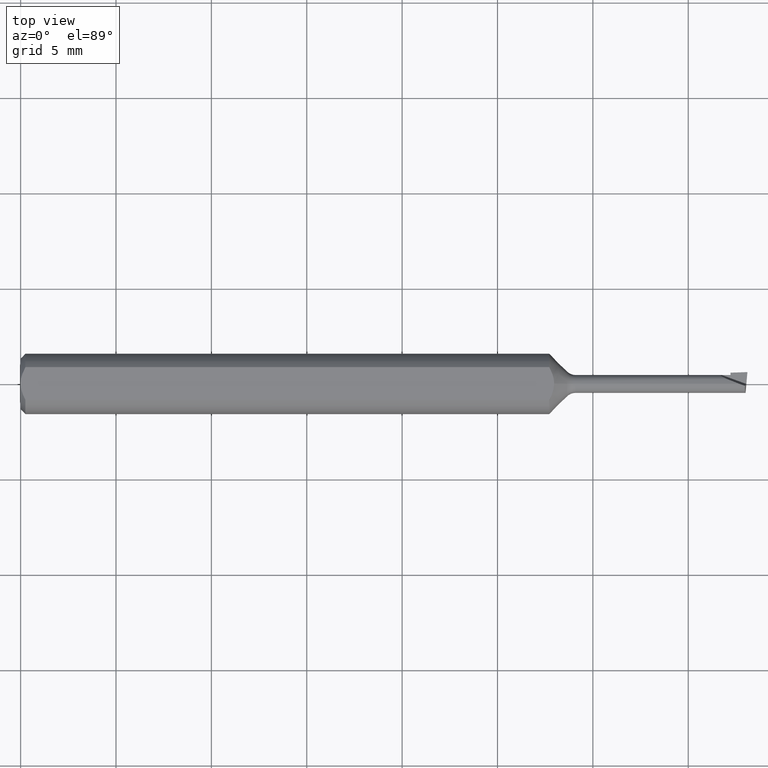
[diagram: clean part render]
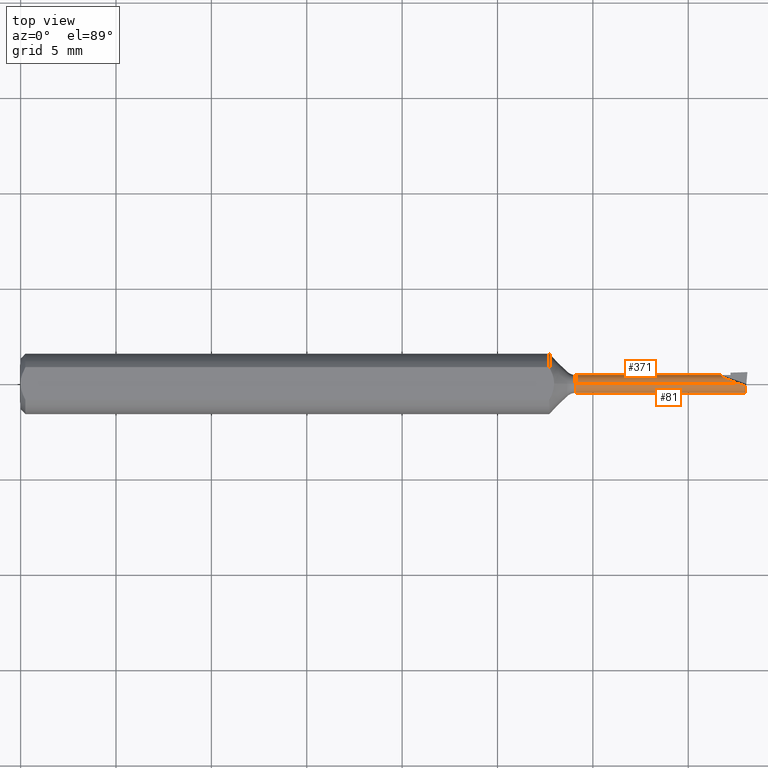
[diagram: same view with one multi-face feature highlighted, each face labeled with its STEP entity id]
A machine part, top view. The highlighted faces form ONE feature: a constant-radius fillet chain: 2 tangent blend faces with common blend radius 0.4699 mm. The faces share edges in the B-rep.
Their STEP definitions:
[1] entity #81 (Cylinder):
#14 = CARTESIAN_POINT ( 'NONE',  ( 1.495246590703220857, 2.265596578422608431E-18, -0.01850000000000004072 ) ) ;
#17 = EDGE_CURVE ( 'NONE', #448, #288, #462, .T. ) ;
#19 = CARTESIAN_POINT ( 'NONE',  ( 1.487126106453287244, -0.001380280959563401832, 0.01850000000000004072 ) ) ;
#20 = CARTESIAN_POINT ( 'NONE',  ( 1.145355339059327404, 2.265596578422613824E-18, -0.01850000000000008235 ) ) ;
#21 = CARTESIAN_POINT ( 'NONE',  ( 1.491015288325890253, -0.002751962849509072186, 0.01834616788330077283 ) ) ;
#35 = CARTESIAN_POINT ( 'NONE',  ( 1.494465960141844629, -0.01288082332125575075, 0.01604535613734159663 ) ) ;
#36 = ORIENTED_EDGE ( 'NONE', *, *, #615, .F. ) ;
#50 = CARTESIAN_POINT ( 'NONE',  ( 1.496237987468385322, -0.01850000000000001990, 2.346737396167180672E-16 ) ) ;
#74 = CARTESIAN_POINT ( 'NONE',  ( 1.145355339059327404, 0.000000000000000000, 0.000000000000000000 ) ) ;
#78 = LINE ( 'NONE', #234, #139 ) ;
#81 = ADVANCED_FACE ( 'NONE', ( #574 ), #417, .T. ) ;
#118 = CARTESIAN_POINT ( 'NONE',  ( 1.494709121747062275, -0.01850000000000016562, -0.01083704909609766072 ) ) ;
#126 = DIRECTION ( 'NONE',  ( -1.000000000000000000, -0.000000000000000000, -0.000000000000000000 ) ) ;
#129 = DIRECTION ( 'NONE',  ( -1.000000000000000000, -0.000000000000000000, -0.000000000000000000 ) ) ;
#133 = CIRCLE ( 'NONE', #525, 0.01850000000000008235 ) ;
#137 = EDGE_CURVE ( 'NONE', #150, #376, #133, .T. ) ;
#139 = VECTOR ( 'NONE', #236, 39.37007874015748143 ) ;
#150 = VERTEX_POINT ( 'NONE', #20 ) ;
#153 = EDGE_LOOP ( 'NONE', ( #332, #547, #36, #585, #298, #347 ) ) ;
#155 =( BOUNDED_CURVE ( )  B_SPLINE_CURVE ( 3, ( #176, #35, #370, #230 ),
 .UNSPECIFIED., .F., .F. ) 
 B_SPLINE_CURVE_WITH_KNOTS ( ( 4, 4 ),
 ( 5.951448363857583246, 7.298880934359467609 ),
 .UNSPECIFIED. ) 
 CURVE ( )  GEOMETRIC_REPRESENTATION_ITEM ( )  RATIONAL_B_SPLINE_CURVE ( ( 1.000000000000000000, 0.8543389983611018312, 0.8543389983611018312, 1.000000000000000000 ) ) 
 REPRESENTATION_ITEM ( '' )  );
#174 = CARTESIAN_POINT ( 'NONE',  ( 1.483333815684383605, 0.000000000000000000, 0.01850000000000004072 ) ) ;
#176 = CARTESIAN_POINT ( 'NONE',  ( 1.494952902551172302, -0.004097954674002875219, 0.01804042038007484111 ) ) ;
#221 = CARTESIAN_POINT ( 'NONE',  ( 1.483333815684383605, 0.000000000000000000, 0.01850000000000004072 ) ) ;
#222 = DIRECTION ( 'NONE',  ( -1.000000000000000000, -0.000000000000000000, -0.000000000000000000 ) ) ;
#230 = CARTESIAN_POINT ( 'NONE',  ( 1.496237987468385322, -0.01850000000000001990, 2.346737396167180672E-16 ) ) ;
#234 = CARTESIAN_POINT ( 'NONE',  ( 0.000000000000000000, 0.000000000000000000, 0.01850000000000004072 ) ) ;
#235 = AXIS2_PLACEMENT_3D ( 'NONE', #614, #129, #474 ) ;
#236 = DIRECTION ( 'NONE',  ( -1.000000000000000000, -0.000000000000000000, -0.000000000000000000 ) ) ;
#262 = VERTEX_POINT ( 'NONE', #353 ) ;
#265 =( BOUNDED_CURVE ( )  B_SPLINE_CURVE ( 3, ( #463, #21, #19, #221 ),
 .UNSPECIFIED., .F., .T. ) 
 B_SPLINE_CURVE_WITH_KNOTS ( ( 4, 4 ),
 ( 4.766799014753298813, 4.990162771046300350 ),
 .UNSPECIFIED. ) 
 CURVE ( )  GEOMETRIC_REPRESENTATION_ITEM ( )  RATIONAL_B_SPLINE_CURVE ( ( 1.000000000000000000, 0.9958467056734143785, 0.9958467056734143785, 1.000000000000000000 ) ) 
 REPRESENTATION_ITEM ( '' )  );
#279 = DIRECTION ( 'NONE',  ( 0.000000000000000000, 0.000000000000000000, 1.000000000000000000 ) ) ;
#288 = VERTEX_POINT ( 'NONE', #50 ) ;
#298 = ORIENTED_EDGE ( 'NONE', *, *, #506, .T. ) ;
#332 = ORIENTED_EDGE ( 'NONE', *, *, #354, .F. ) ;
#347 = ORIENTED_EDGE ( 'NONE', *, *, #137, .F. ) ;
#353 = CARTESIAN_POINT ( 'NONE',  ( 1.494952902551172302, -0.004097954674002875219, 0.01804042038007484111 ) ) ;
#354 = EDGE_CURVE ( 'NONE', #448, #150, #412, .T. ) ;
#355 = VERTEX_POINT ( 'NONE', #174 ) ;
#357 = CARTESIAN_POINT ( 'NONE',  ( 1.145355339059327404, 0.000000000000000000, 0.01850000000000008235 ) ) ;
#358 = CARTESIAN_POINT ( 'NONE',  ( 1.495246590703220857, 2.265596578422608431E-18, -0.01850000000000004072 ) ) ;
#370 = CARTESIAN_POINT ( 'NONE',  ( 1.494967355536287235, -0.01849999999999996092, 0.009006612182587480503 ) ) ;
#376 = VERTEX_POINT ( 'NONE', #357 ) ;
#407 = EDGE_CURVE ( 'NONE', #262, #355, #265, .T. ) ;
#412 = LINE ( 'NONE', #504, #487 ) ;
#417 = CYLINDRICAL_SURFACE ( 'NONE', #235, 0.01850000000000004072 ) ;
#448 = VERTEX_POINT ( 'NONE', #14 ) ;
#462 =( BOUNDED_CURVE ( )  B_SPLINE_CURVE ( 3, ( #358, #566, #118, #527 ),
 .UNSPECIFIED., .F., .T. ) 
 B_SPLINE_CURVE_WITH_KNOTS ( ( 4, 4 ),
 ( 5.728084607564617237, 7.298880934359527117 ),
 .UNSPECIFIED. ) 
 CURVE ( )  GEOMETRIC_REPRESENTATION_ITEM ( )  RATIONAL_B_SPLINE_CURVE ( ( 1.000000000000000000, 0.8047378541243618288, 0.8047378541243618288, 1.000000000000000000 ) ) 
 REPRESENTATION_ITEM ( '' )  );
#463 = CARTESIAN_POINT ( 'NONE',  ( 1.494952902551172302, -0.004097954674002875219, 0.01804042038007484111 ) ) ;
#474 = DIRECTION ( 'NONE',  ( 0.000000000000000000, 0.000000000000000000, 1.000000000000000000 ) ) ;
#487 = VECTOR ( 'NONE', #126, 39.37007874015748143 ) ;
#504 = CARTESIAN_POINT ( 'NONE',  ( 0.000000000000000000, 2.265596578422608431E-18, -0.01850000000000004072 ) ) ;
#506 = EDGE_CURVE ( 'NONE', #355, #376, #78, .T. ) ;
#525 = AXIS2_PLACEMENT_3D ( 'NONE', #74, #222, #279 ) ;
#527 = CARTESIAN_POINT ( 'NONE',  ( 1.496237987468385322, -0.01850000000000001990, 2.346737396167180672E-16 ) ) ;
#547 = ORIENTED_EDGE ( 'NONE', *, *, #17, .T. ) ;
#566 = CARTESIAN_POINT ( 'NONE',  ( 1.494298471761238423, -0.01083704909609784460, -0.01850000000000005460 ) ) ;
#574 = FACE_OUTER_BOUND ( 'NONE', #153, .T. ) ;
#585 = ORIENTED_EDGE ( 'NONE', *, *, #407, .T. ) ;
#614 = CARTESIAN_POINT ( 'NONE',  ( 0.000000000000000000, 0.000000000000000000, 0.000000000000000000 ) ) ;
#615 = EDGE_CURVE ( 'NONE', #262, #288, #155, .T. ) ;
[2] entity #371 (Cylinder):
#14 = CARTESIAN_POINT ( 'NONE',  ( 1.495246590703220857, 2.265596578422608431E-18, -0.01850000000000004072 ) ) ;
#20 = CARTESIAN_POINT ( 'NONE',  ( 1.145355339059327404, 2.265596578422613824E-18, -0.01850000000000008235 ) ) ;
#47 = ORIENTED_EDGE ( 'NONE', *, *, #447, .T. ) ;
#57 =( BOUNDED_CURVE ( )  B_SPLINE_CURVE ( 3, ( #58, #507, #119, #363 ),
 .UNSPECIFIED., .F., .F. ) 
 B_SPLINE_CURVE_WITH_KNOTS ( ( 4, 4 ),
 ( 5.466285219765468995, 5.728084607564617237 ),
 .UNSPECIFIED. ) 
 CURVE ( )  GEOMETRIC_REPRESENTATION_ITEM ( )  RATIONAL_B_SPLINE_CURVE ( ( 1.000000000000000000, 0.9942965742492069214, 0.9942965742492069214, 1.000000000000000000 ) ) 
 REPRESENTATION_ITEM ( '' )  );
#58 = CARTESIAN_POINT ( 'NONE',  ( 1.495754431199804557, 0.004788152334396648772, -0.01786962778634774984 ) ) ;
#65 = CARTESIAN_POINT ( 'NONE',  ( 1.446998957439700861, 0.01850000000000003725, -4.483286445232968331E-18 ) ) ;
#69 = CIRCLE ( 'NONE', #128, 0.01850000000000008235 ) ;
#78 = LINE ( 'NONE', #234, #139 ) ;
#101 =( BOUNDED_CURVE ( )  B_SPLINE_CURVE ( 3, ( #406, #267, #459, #65 ),
 .UNSPECIFIED., .F., .F. ) 
 B_SPLINE_CURVE_WITH_KNOTS ( ( 4, 4 ),
 ( 4.990162771046300350, 6.560959097841199572 ),
 .UNSPECIFIED. ) 
 CURVE ( )  GEOMETRIC_REPRESENTATION_ITEM ( )  RATIONAL_B_SPLINE_CURVE ( ( 1.000000000000000000, 0.8047378541243643824, 0.8047378541243643824, 1.000000000000000000 ) ) 
 REPRESENTATION_ITEM ( '' )  );
#119 = CARTESIAN_POINT ( 'NONE',  ( 1.495388239854692269, 0.001619057209963984268, -0.01850000000000003378 ) ) ;
#126 = DIRECTION ( 'NONE',  ( -1.000000000000000000, -0.000000000000000000, -0.000000000000000000 ) ) ;
#128 = AXIS2_PLACEMENT_3D ( 'NONE', #545, #494, #251 ) ;
#131 = LINE ( 'NONE', #138, #416 ) ;
#135 = DIRECTION ( 'NONE',  ( 0.000000000000000000, 0.000000000000000000, 1.000000000000000000 ) ) ;
#138 = CARTESIAN_POINT ( 'NONE',  ( 2.815371162439451627E-33, 0.01850000000000004072, -6.508939666095427711E-17 ) ) ;
#139 = VECTOR ( 'NONE', #236, 39.37007874015748143 ) ;
#150 = VERTEX_POINT ( 'NONE', #20 ) ;
#157 = ORIENTED_EDGE ( 'NONE', *, *, #340, .F. ) ;
#165 = CARTESIAN_POINT ( 'NONE',  ( 0.000000000000000000, 0.000000000000000000, 0.000000000000000000 ) ) ;
#174 = CARTESIAN_POINT ( 'NONE',  ( 1.483333815684383605, 0.000000000000000000, 0.01850000000000004072 ) ) ;
#177 = AXIS2_PLACEMENT_3D ( 'NONE', #165, #264, #261 ) ;
#185 = VERTEX_POINT ( 'NONE', #420 ) ;
#213 = CYLINDRICAL_SURFACE ( 'NONE', #177, 0.01850000000000004072 ) ;
#226 = AXIS2_PLACEMENT_3D ( 'NONE', #426, #584, #135 ) ;
#233 = VERTEX_POINT ( 'NONE', #307 ) ;
#234 = CARTESIAN_POINT ( 'NONE',  ( 0.000000000000000000, 0.000000000000000000, 0.01850000000000004072 ) ) ;
#236 = DIRECTION ( 'NONE',  ( -1.000000000000000000, -0.000000000000000000, -0.000000000000000000 ) ) ;
#248 = EDGE_LOOP ( 'NONE', ( #543, #484, #157, #450, #47, #457, #551, #403 ) ) ;
#251 = DIRECTION ( 'NONE',  ( 0.000000000000000000, 0.000000000000000000, 1.000000000000000000 ) ) ;
#261 = DIRECTION ( 'NONE',  ( 0.000000000000000000, 0.000000000000000000, 1.000000000000000000 ) ) ;
#264 = DIRECTION ( 'NONE',  ( -1.000000000000000000, -0.000000000000000000, -0.000000000000000000 ) ) ;
#267 = CARTESIAN_POINT ( 'NONE',  ( 1.453559267999332549, 0.01083704909609773184, 0.01850000000000007888 ) ) ;
#271 = EDGE_CURVE ( 'NONE', #185, #233, #394, .T. ) ;
#294 = VECTOR ( 'NONE', #644, 39.37007874015748143 ) ;
#307 = CARTESIAN_POINT ( 'NONE',  ( 1.465000000000000080, 0.004788152334396648772, -0.01786962778634774984 ) ) ;
#321 = CARTESIAN_POINT ( 'NONE',  ( 1.446998957439700861, 0.01850000000000003725, -4.483286445232968331E-18 ) ) ;
#323 = CARTESIAN_POINT ( 'NONE',  ( 1.465000000000000080, 0.01850000000000004072, -6.508939666095427711E-17 ) ) ;
#340 = EDGE_CURVE ( 'NONE', #376, #150, #69, .T. ) ;
#354 = EDGE_CURVE ( 'NONE', #448, #150, #412, .T. ) ;
#355 = VERTEX_POINT ( 'NONE', #174 ) ;
#357 = CARTESIAN_POINT ( 'NONE',  ( 1.145355339059327404, 0.000000000000000000, 0.01850000000000008235 ) ) ;
#363 = CARTESIAN_POINT ( 'NONE',  ( 1.495246590703220857, 2.265596578422608431E-18, -0.01850000000000004072 ) ) ;
#371 = ADVANCED_FACE ( 'NONE', ( #611 ), #213, .T. ) ;
#375 = CIRCLE ( 'NONE', #226, 0.01849999999999999908 ) ;
#376 = VERTEX_POINT ( 'NONE', #357 ) ;
#377 = DIRECTION ( 'NONE',  ( 1.000000000000000000, 0.000000000000000000, 0.000000000000000000 ) ) ;
#394 = LINE ( 'NONE', #401, #294 ) ;
#401 = CARTESIAN_POINT ( 'NONE',  ( 1.560200597524541877, 0.004788152334396648772, -0.01786962778634774984 ) ) ;
#403 = ORIENTED_EDGE ( 'NONE', *, *, #271, .F. ) ;
#406 = CARTESIAN_POINT ( 'NONE',  ( 1.483333815684383605, 0.000000000000000000, 0.01850000000000004072 ) ) ;
#412 = LINE ( 'NONE', #504, #487 ) ;
#416 = VECTOR ( 'NONE', #377, 39.37007874015748143 ) ;
#420 = CARTESIAN_POINT ( 'NONE',  ( 1.495754431199804557, 0.004788152334396648772, -0.01786962778634774984 ) ) ;
#426 = CARTESIAN_POINT ( 'NONE',  ( 1.465000000000000080, 0.000000000000000000, 0.000000000000000000 ) ) ;
#434 = EDGE_CURVE ( 'NONE', #185, #448, #57, .T. ) ;
#447 = EDGE_CURVE ( 'NONE', #355, #509, #101, .T. ) ;
#448 = VERTEX_POINT ( 'NONE', #14 ) ;
#450 = ORIENTED_EDGE ( 'NONE', *, *, #506, .F. ) ;
#457 = ORIENTED_EDGE ( 'NONE', *, *, #557, .T. ) ;
#459 = CARTESIAN_POINT ( 'NONE',  ( 1.438508876927480973, 0.01850000000000003725, 0.01083704909609779603 ) ) ;
#484 = ORIENTED_EDGE ( 'NONE', *, *, #354, .T. ) ;
#487 = VECTOR ( 'NONE', #126, 39.37007874015748143 ) ;
#494 = DIRECTION ( 'NONE',  ( -1.000000000000000000, -0.000000000000000000, -0.000000000000000000 ) ) ;
#504 = CARTESIAN_POINT ( 'NONE',  ( 0.000000000000000000, 2.265596578422608431E-18, -0.01850000000000004072 ) ) ;
#506 = EDGE_CURVE ( 'NONE', #355, #376, #78, .T. ) ;
#507 = CARTESIAN_POINT ( 'NONE',  ( 1.495558491035186899, 0.003224263161052959813, -0.01828867062739701621 ) ) ;
#509 = VERTEX_POINT ( 'NONE', #321 ) ;
#528 = EDGE_CURVE ( 'NONE', #562, #233, #375, .T. ) ;
#543 = ORIENTED_EDGE ( 'NONE', *, *, #434, .T. ) ;
#545 = CARTESIAN_POINT ( 'NONE',  ( 1.145355339059327404, 0.000000000000000000, 0.000000000000000000 ) ) ;
#551 = ORIENTED_EDGE ( 'NONE', *, *, #528, .T. ) ;
#557 = EDGE_CURVE ( 'NONE', #509, #562, #131, .T. ) ;
#562 = VERTEX_POINT ( 'NONE', #323 ) ;
#584 = DIRECTION ( 'NONE',  ( -1.000000000000000000, -0.000000000000000000, -0.000000000000000000 ) ) ;
#611 = FACE_OUTER_BOUND ( 'NONE', #248, .T. ) ;
#644 = DIRECTION ( 'NONE',  ( -1.000000000000000000, 0.000000000000000000, 0.000000000000000000 ) ) ;